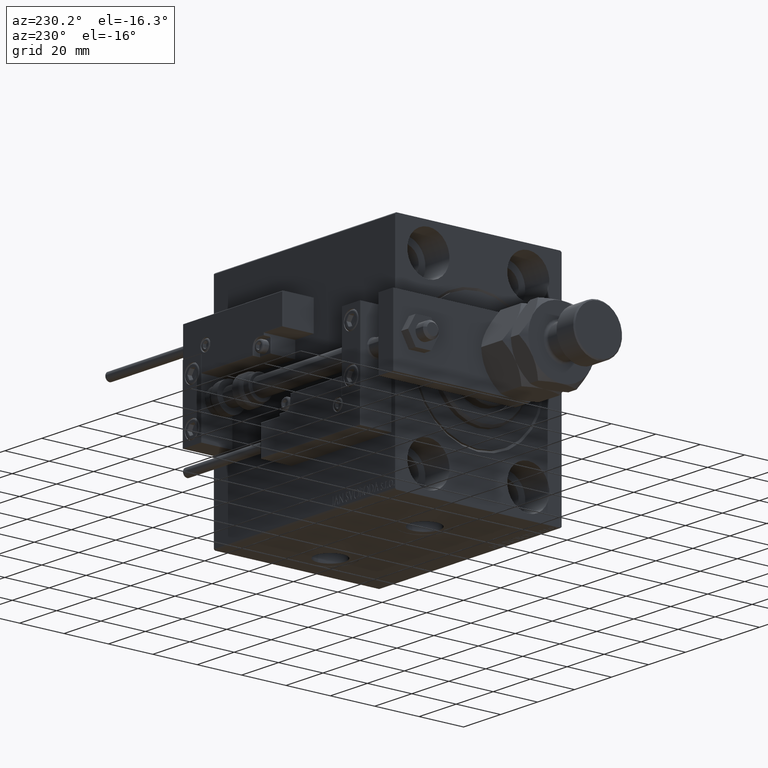
[diagram: clean part render]
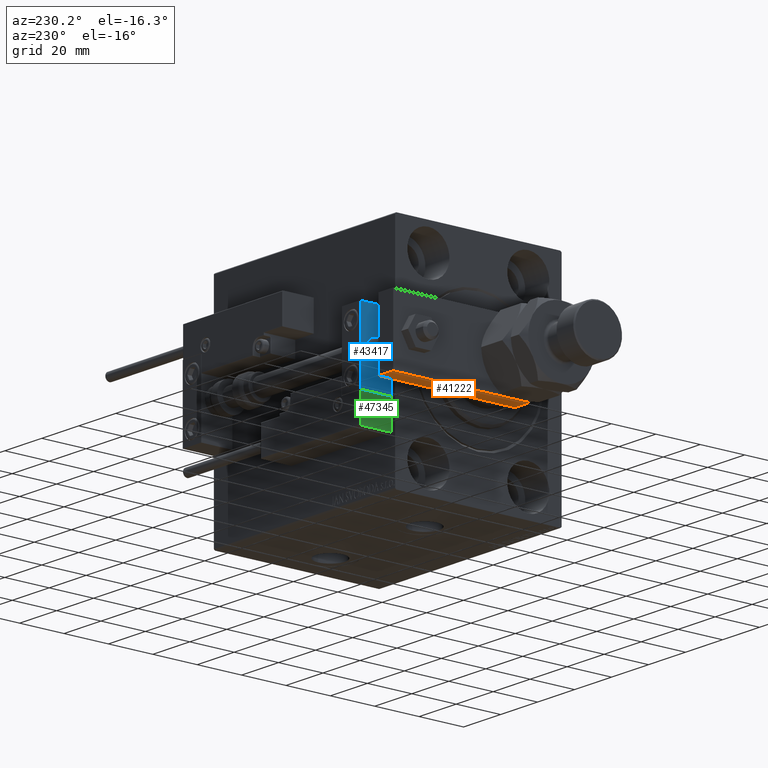
[diagram: same view with three faces highlighted in distinct colors, each labeled with its STEP entity id]
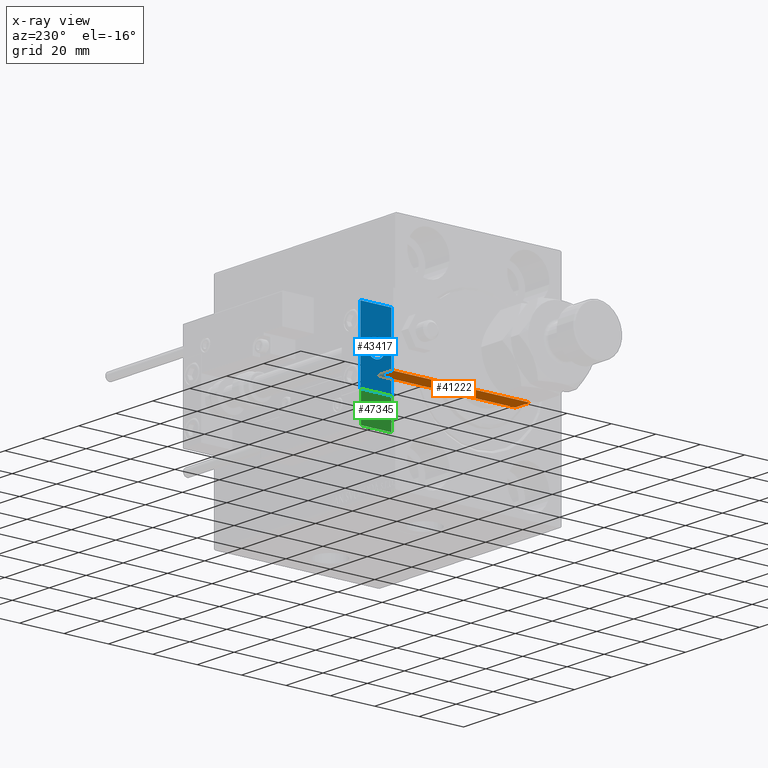
[diagram: x-ray of the same camera — body ghosted, the three highlighted faces saturated]
A machine part, auxiliary view with three faces highlighted in distinct colors.
The next image is the same camera in x-ray (body ghosted, the three faces saturated) — at least one of them is partly hidden behind the body in this view.
Their STEP definitions:

[orange] entity #41222 — the highlighted planar face has unit normal (0, -0, 1).
#1579 = DIRECTION ( 'NONE',  ( -7.434529182757744162E-17, -1.000000000000000000, 0.000000000000000000 ) ) ;
#6381 = VERTEX_POINT ( 'NONE', #52885 ) ;
#8760 = LINE ( 'NONE', #50020, #33805 ) ;
#9413 = LINE ( 'NONE', #25372, #24779 ) ;
#11057 = ORIENTED_EDGE ( 'NONE', *, *, #31960, .T. ) ;
#12980 = CARTESIAN_POINT ( 'NONE',  ( -15.00000000000000355, 8.500000000000028422, 8.000000000000000000 ) ) ;
#14636 = DIRECTION ( 'NONE',  ( -7.434529182757744162E-17, -1.000000000000000000, 0.000000000000000000 ) ) ;
#15113 = DIRECTION ( 'NONE',  ( 1.000000000000000000, -7.434529182757744162E-17, 0.000000000000000000 ) ) ;
#15508 = EDGE_LOOP ( 'NONE', ( #31415, #47108, #33003, #11057 ) ) ;
#16581 = CARTESIAN_POINT ( 'NONE',  ( -14.99999999999999822, 70.00000000000000000, 0.000000000000000000 ) ) ;
#17947 = EDGE_CURVE ( 'NONE', #47272, #6381, #49925, .T. ) ;
#18756 = VERTEX_POINT ( 'NONE', #32759 ) ;
#24779 = VECTOR ( 'NONE', #1579, 1000.000000000000000 ) ;
#25372 = CARTESIAN_POINT ( 'NONE',  ( -14.99999999999999822, 70.00000000000000000, 8.000000000000000000 ) ) ;
#28167 = EDGE_CURVE ( 'NONE', #18756, #6381, #9413, .T. ) ;
#31415 = ORIENTED_EDGE ( 'NONE', *, *, #39989, .T. ) ;
#31572 = DIRECTION ( 'NONE',  ( 7.434529182757744162E-17, 1.000000000000000000, 0.000000000000000000 ) ) ;
#31960 = EDGE_CURVE ( 'NONE', #18756, #39725, #8760, .T. ) ;
#32759 = CARTESIAN_POINT ( 'NONE',  ( -14.99999999999999822, 70.00000000000000000, 8.000000000000000000 ) ) ;
#33003 = ORIENTED_EDGE ( 'NONE', *, *, #28167, .F. ) ;
#33805 = VECTOR ( 'NONE', #41939, 1000.000000000000000 ) ;
#39725 = VERTEX_POINT ( 'NONE', #16581 ) ;
#39989 = EDGE_CURVE ( 'NONE', #39725, #47272, #48075, .T. ) ;
#40871 = VECTOR ( 'NONE', #46667, 1000.000000000000000 ) ;
#41222 = ADVANCED_FACE ( 'NONE', ( #52061 ), #48018, .F. ) ;
#41939 = DIRECTION ( 'NONE',  ( -0.000000000000000000, -0.000000000000000000, -1.000000000000000000 ) ) ;
#43421 = VECTOR ( 'NONE', #14636, 1000.000000000000000 ) ;
#43697 = CARTESIAN_POINT ( 'NONE',  ( -14.99999999999999822, 70.00000000000000000, 8.000000000000000000 ) ) ;
#45526 = CARTESIAN_POINT ( 'NONE',  ( -15.00000000000000355, 8.500000000000028422, 0.000000000000000000 ) ) ;
#46062 = AXIS2_PLACEMENT_3D ( 'NONE', #43697, #15113, #31572 ) ;
#46667 = DIRECTION ( 'NONE',  ( 0.000000000000000000, 0.000000000000000000, 1.000000000000000000 ) ) ;
#47108 = ORIENTED_EDGE ( 'NONE', *, *, #17947, .T. ) ;
#47272 = VERTEX_POINT ( 'NONE', #45526 ) ;
#47545 = CARTESIAN_POINT ( 'NONE',  ( -14.99999999999999822, 70.00000000000000000, 0.000000000000000000 ) ) ;
#48018 = PLANE ( 'NONE',  #46062 ) ;
#48075 = LINE ( 'NONE', #47545, #43421 ) ;
#49925 = LINE ( 'NONE', #12980, #40871 ) ;
#50020 = CARTESIAN_POINT ( 'NONE',  ( -14.99999999999999822, 70.00000000000000000, 8.000000000000000000 ) ) ;
#52061 = FACE_OUTER_BOUND ( 'NONE', #15508, .T. ) ;
#52885 = CARTESIAN_POINT ( 'NONE',  ( -15.00000000000000355, 8.500000000000028422, 8.000000000000000000 ) ) ;

[blue] entity #43417 — the highlighted planar face has unit normal (1, 0, -0).
#842 = EDGE_LOOP ( 'NONE', ( #25930, #16215, #36658, #11649 ) ) ;
#2914 = PLANE ( 'NONE',  #5681 ) ;
#3638 = CARTESIAN_POINT ( 'NONE',  ( 10.00000000000000000, 0.000000000000000000, 4.000000000000000000 ) ) ;
#3674 = VECTOR ( 'NONE', #38571, 1000.000000000000000 ) ;
#3937 = VERTEX_POINT ( 'NONE', #52171 ) ;
#5467 = CARTESIAN_POINT ( 'NONE',  ( 10.00000000000000000, 7.000000000000000000, 15.99999999999999289 ) ) ;
#5681 = AXIS2_PLACEMENT_3D ( 'NONE', #19625, #27999, #6941 ) ;
#6415 = ORIENTED_EDGE ( 'NONE', *, *, #14054, .T. ) ;
#6941 = DIRECTION ( 'NONE',  ( -0.000000000000000000, 0.000000000000000000, 1.000000000000000000 ) ) ;
#7821 = DIRECTION ( 'NONE',  ( -1.000000000000000000, 0.000000000000000000, 0.000000000000000000 ) ) ;
#11649 = ORIENTED_EDGE ( 'NONE', *, *, #21500, .T. ) ;
#11802 = FACE_BOUND ( 'NONE', #46599, .T. ) ;
#13100 = VERTEX_POINT ( 'NONE', #20825 ) ;
#14054 = EDGE_CURVE ( 'NONE', #39822, #13100, #21788, .T. ) ;
#14791 = CARTESIAN_POINT ( 'NONE',  ( 10.00000000000000000, -7.000000000000000000, 15.99999999999999289 ) ) ;
#15087 = VECTOR ( 'NONE', #35331, 1000.000000000000000 ) ;
#15967 = ORIENTED_EDGE ( 'NONE', *, *, #36599, .T. ) ;
#16144 = VERTEX_POINT ( 'NONE', #21352 ) ;
#16215 = ORIENTED_EDGE ( 'NONE', *, *, #28508, .F. ) ;
#16267 = CARTESIAN_POINT ( 'NONE',  ( 10.00000000000000000, 7.000000000000000000, -16.00000000000000711 ) ) ;
#18868 = CARTESIAN_POINT ( 'NONE',  ( 10.00000000000000000, 7.000000000000000000, 15.99999999999999289 ) ) ;
#19625 = CARTESIAN_POINT ( 'NONE',  ( 10.00000000000000000, 0.000000000000000000, 0.000000000000000000 ) ) ;
#20515 = CARTESIAN_POINT ( 'NONE',  ( 10.00000000000000000, 0.000000000000000000, 0.000000000000000000 ) ) ;
#20535 = DIRECTION ( 'NONE',  ( 0.000000000000000000, -1.000000000000000000, 0.000000000000000000 ) ) ;
#20825 = CARTESIAN_POINT ( 'NONE',  ( 10.00000000000000000, 4.898587196589412829E-16, -4.000000000000000000 ) ) ;
#21352 = CARTESIAN_POINT ( 'NONE',  ( 10.00000000000000000, -7.000000000000000000, -16.00000000000000711 ) ) ;
#21500 = EDGE_CURVE ( 'NONE', #3937, #48574, #46455, .T. ) ;
#21788 = CIRCLE ( 'NONE', #36402, 4.000000000000000000 ) ;
#23864 = EDGE_CURVE ( 'NONE', #3937, #45060, #43676, .T. ) ;
#24297 = DIRECTION ( 'NONE',  ( 0.000000000000000000, 0.000000000000000000, 1.000000000000000000 ) ) ;
#25930 = ORIENTED_EDGE ( 'NONE', *, *, #33289, .T. ) ;
#26289 = CARTESIAN_POINT ( 'NONE',  ( 10.00000000000000000, 0.000000000000000000, 0.000000000000000000 ) ) ;
#26406 = VECTOR ( 'NONE', #26759, 1000.000000000000000 ) ;
#26759 = DIRECTION ( 'NONE',  ( 0.000000000000000000, -1.000000000000000000, 0.000000000000000000 ) ) ;
#27999 = DIRECTION ( 'NONE',  ( -1.000000000000000000, 0.000000000000000000, -0.000000000000000000 ) ) ;
#28508 = EDGE_CURVE ( 'NONE', #45060, #16144, #37250, .T. ) ;
#30839 = DIRECTION ( 'NONE',  ( -1.000000000000000000, 0.000000000000000000, 0.000000000000000000 ) ) ;
#31144 = CARTESIAN_POINT ( 'NONE',  ( 10.00000000000000000, -7.000000000000000000, 15.99999999999999289 ) ) ;
#33289 = EDGE_CURVE ( 'NONE', #48574, #16144, #51738, .T. ) ;
#34828 = CIRCLE ( 'NONE', #47626, 4.000000000000000000 ) ;
#35331 = DIRECTION ( 'NONE',  ( 0.000000000000000000, 0.000000000000000000, -1.000000000000000000 ) ) ;
#35965 = VECTOR ( 'NONE', #20535, 1000.000000000000000 ) ;
#36402 = AXIS2_PLACEMENT_3D ( 'NONE', #20515, #7821, #24297 ) ;
#36599 = EDGE_CURVE ( 'NONE', #13100, #39822, #34828, .T. ) ;
#36658 = ORIENTED_EDGE ( 'NONE', *, *, #23864, .F. ) ;
#37250 = LINE ( 'NONE', #40765, #35965 ) ;
#38571 = DIRECTION ( 'NONE',  ( 0.000000000000000000, 0.000000000000000000, -1.000000000000000000 ) ) ;
#39822 = VERTEX_POINT ( 'NONE', #3638 ) ;
#40765 = CARTESIAN_POINT ( 'NONE',  ( 10.00000000000000000, 7.000000000000000000, -16.00000000000000711 ) ) ;
#42182 = DIRECTION ( 'NONE',  ( 0.000000000000000000, 0.000000000000000000, 1.000000000000000000 ) ) ;
#43417 = ADVANCED_FACE ( 'NONE', ( #11802, #48207 ), #2914, .F. ) ;
#43676 = LINE ( 'NONE', #18868, #15087 ) ;
#45060 = VERTEX_POINT ( 'NONE', #16267 ) ;
#46455 = LINE ( 'NONE', #5467, #26406 ) ;
#46599 = EDGE_LOOP ( 'NONE', ( #6415, #15967 ) ) ;
#47626 = AXIS2_PLACEMENT_3D ( 'NONE', #26289, #30839, #42182 ) ;
#48207 = FACE_OUTER_BOUND ( 'NONE', #842, .T. ) ;
#48574 = VERTEX_POINT ( 'NONE', #31144 ) ;
#51738 = LINE ( 'NONE', #14791, #3674 ) ;
#52171 = CARTESIAN_POINT ( 'NONE',  ( 10.00000000000000000, 7.000000000000000000, 15.99999999999999289 ) ) ;

[green] entity #47345 — the highlighted planar face has unit normal (1, 0, -0).
#91 = EDGE_CURVE ( 'NONE', #23543, #8342, #15117, .T. ) ;
#111 = ORIENTED_EDGE ( 'NONE', *, *, #8976, .T. ) ;
#212 = DIRECTION ( 'NONE',  ( -0.000000000000000000, -0.000000000000000000, -1.000000000000000000 ) ) ;
#1501 = EDGE_CURVE ( 'NONE', #23543, #11992, #48769, .T. ) ;
#2723 = CARTESIAN_POINT ( 'NONE',  ( -26.99999999999993605, 20.00000000000002132, 0.000000000000000000 ) ) ;
#5329 = DIRECTION ( 'NONE',  ( 1.000000000000000000, -8.006416042969869188E-16, 0.000000000000000000 ) ) ;
#5471 = EDGE_CURVE ( 'NONE', #40097, #11992, #48030, .T. ) ;
#8302 = CARTESIAN_POINT ( 'NONE',  ( -26.99999999999994671, 7.000000000000005329, 14.00000000000000000 ) ) ;
#8342 = VERTEX_POINT ( 'NONE', #18072 ) ;
#8976 = EDGE_CURVE ( 'NONE', #8342, #40097, #33827, .T. ) ;
#9633 = CARTESIAN_POINT ( 'NONE',  ( -26.99999999999993605, 20.00000000000002132, 14.00000000000000000 ) ) ;
#9898 = PLANE ( 'NONE',  #24784 ) ;
#11609 = CARTESIAN_POINT ( 'NONE',  ( -26.99999999999993605, 20.00000000000002132, 13.70000000000000107 ) ) ;
#11992 = VERTEX_POINT ( 'NONE', #34081 ) ;
#15117 = LINE ( 'NONE', #11609, #44052 ) ;
#18072 = CARTESIAN_POINT ( 'NONE',  ( -26.99999999999993605, 20.00000000000002132, 13.70000000000000107 ) ) ;
#22063 = ORIENTED_EDGE ( 'NONE', *, *, #5471, .T. ) ;
#23543 = VERTEX_POINT ( 'NONE', #32021 ) ;
#24784 = AXIS2_PLACEMENT_3D ( 'NONE', #9633, #5329, #42023 ) ;
#28396 = CARTESIAN_POINT ( 'NONE',  ( -26.99999999999993605, 20.00000000000002132, 0.000000000000000000 ) ) ;
#32021 = CARTESIAN_POINT ( 'NONE',  ( -26.99999999999994671, 7.000000000000005329, 13.70000000000000107 ) ) ;
#32761 = VECTOR ( 'NONE', #43182, 1000.000000000000000 ) ;
#33827 = LINE ( 'NONE', #34867, #35478 ) ;
#34081 = CARTESIAN_POINT ( 'NONE',  ( -26.99999999999994671, 7.000000000000005329, 0.000000000000000000 ) ) ;
#34867 = CARTESIAN_POINT ( 'NONE',  ( -26.99999999999993605, 20.00000000000002132, 14.00000000000000000 ) ) ;
#35478 = VECTOR ( 'NONE', #47001, 1000.000000000000000 ) ;
#35696 = ORIENTED_EDGE ( 'NONE', *, *, #91, .T. ) ;
#40097 = VERTEX_POINT ( 'NONE', #28396 ) ;
#42023 = DIRECTION ( 'NONE',  ( 8.006416042969869188E-16, 1.000000000000000000, 0.000000000000000000 ) ) ;
#43182 = DIRECTION ( 'NONE',  ( -8.006416042969869188E-16, -1.000000000000000000, 0.000000000000000000 ) ) ;
#44052 = VECTOR ( 'NONE', #47484, 1000.000000000000000 ) ;
#46828 = ORIENTED_EDGE ( 'NONE', *, *, #1501, .F. ) ;
#47001 = DIRECTION ( 'NONE',  ( -0.000000000000000000, -0.000000000000000000, -1.000000000000000000 ) ) ;
#47345 = ADVANCED_FACE ( 'NONE', ( #50381 ), #9898, .F. ) ;
#47484 = DIRECTION ( 'NONE',  ( 8.006416042969869188E-16, 1.000000000000000000, -0.000000000000000000 ) ) ;
#48030 = LINE ( 'NONE', #2723, #32761 ) ;
#48769 = LINE ( 'NONE', #8302, #51878 ) ;
#50381 = FACE_OUTER_BOUND ( 'NONE', #50802, .T. ) ;
#50802 = EDGE_LOOP ( 'NONE', ( #46828, #35696, #111, #22063 ) ) ;
#51878 = VECTOR ( 'NONE', #212, 1000.000000000000000 ) ;